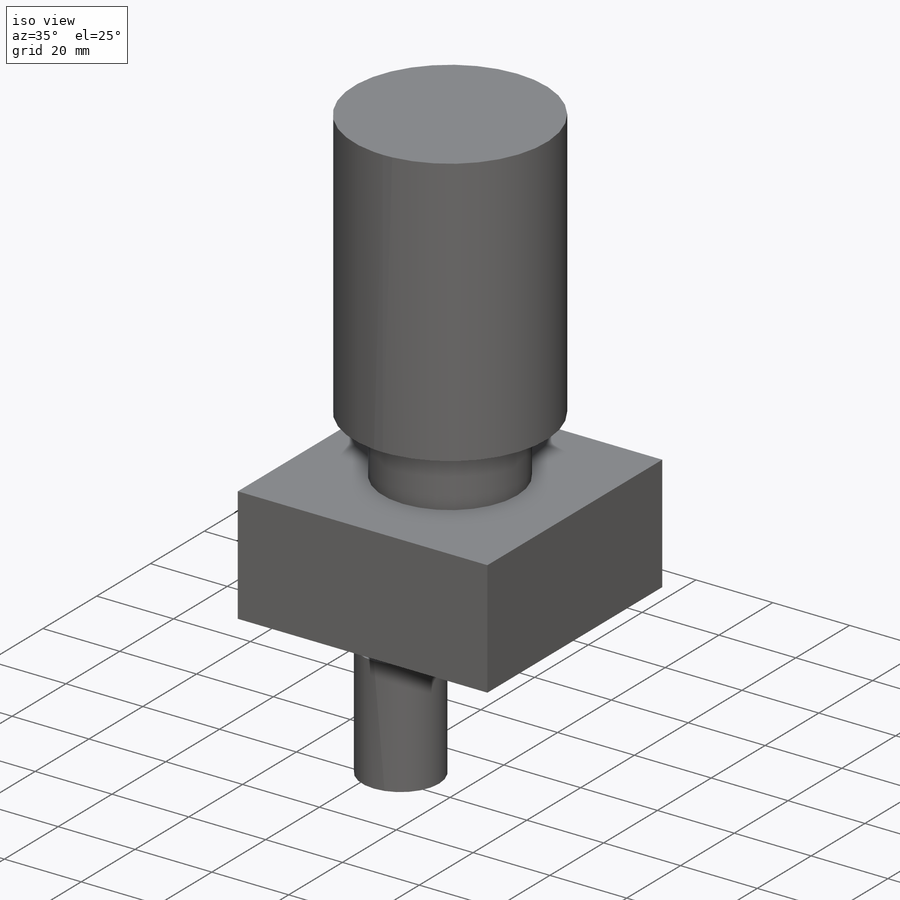
[diagram: iso view]
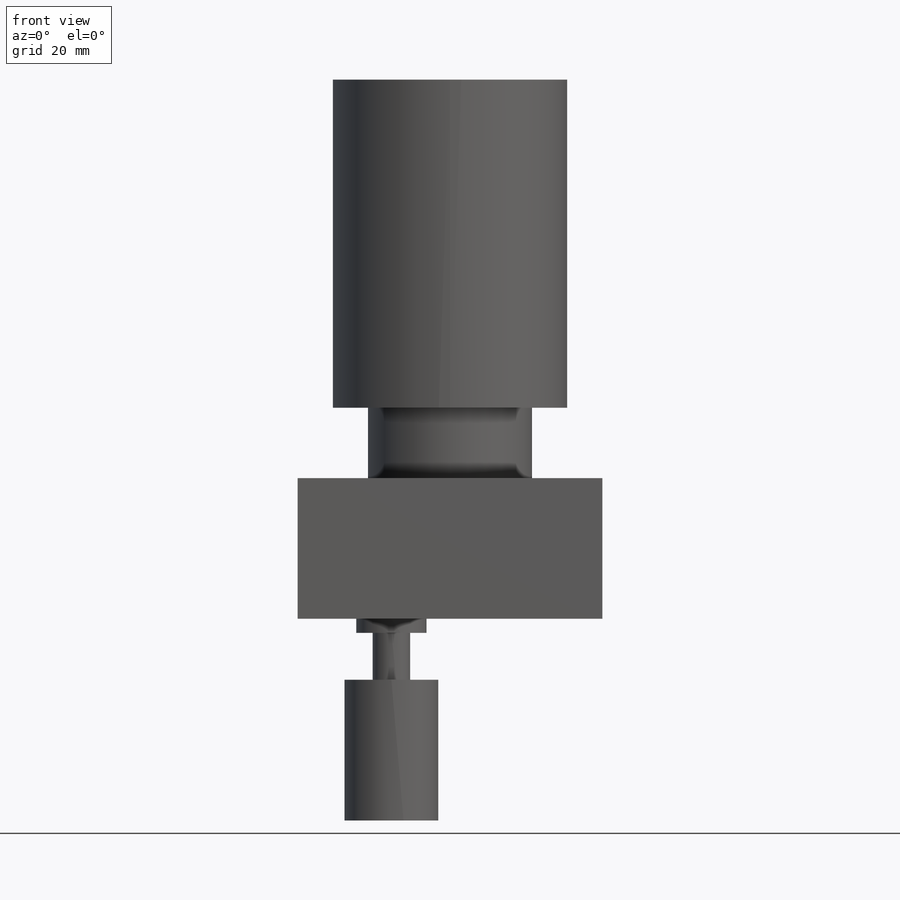
[diagram: front view]
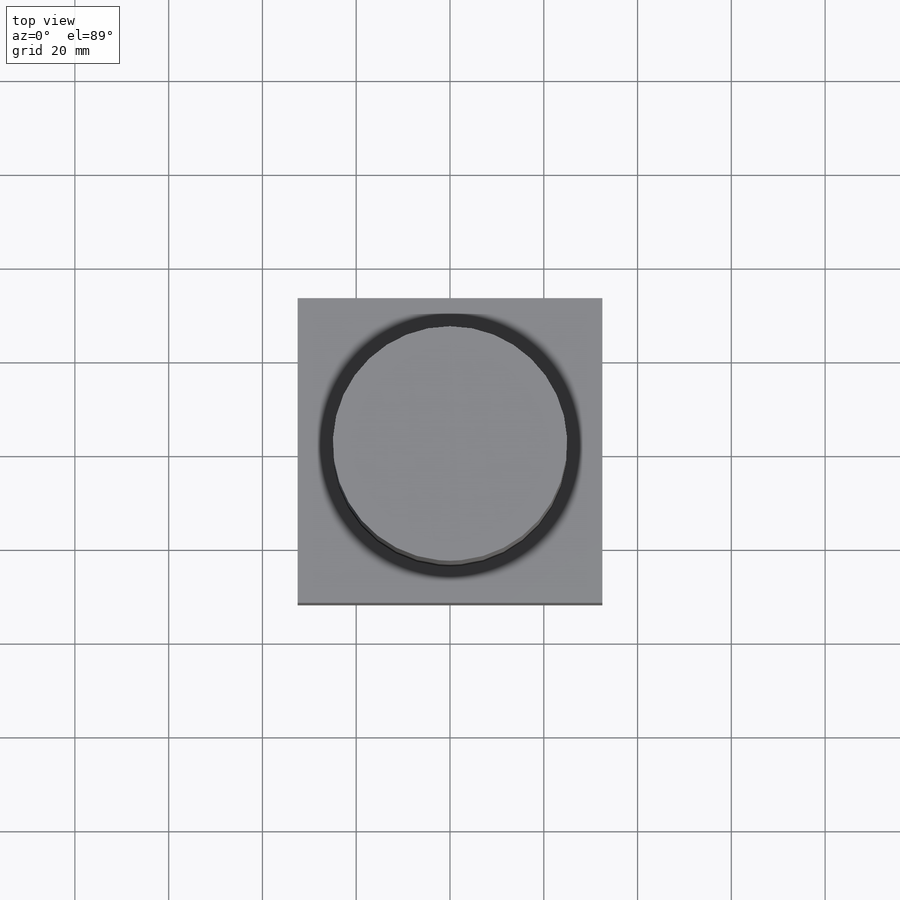
[diagram: top view]
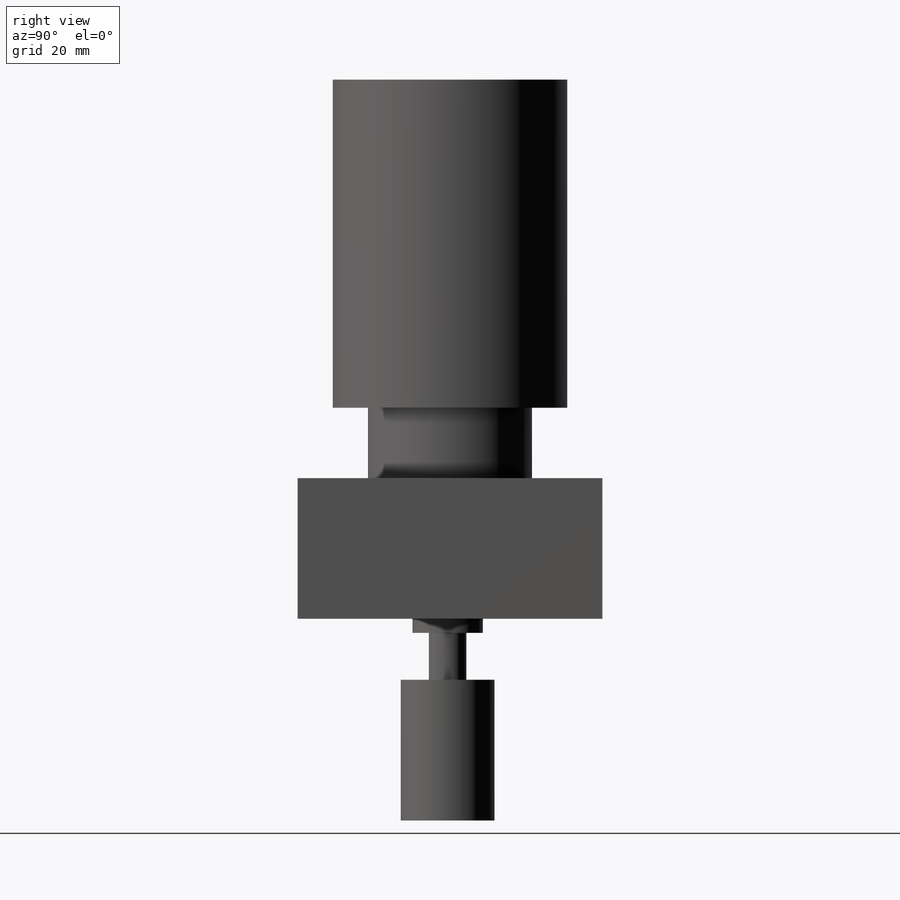
[diagram: right view]
SOLIDWORKS PART (.sldprt)
format: sldprt  version: not decoded by parser v0  size: 195,072 bytes
history: native  units: mm
features: sketch x7, extrude x6, material x1, cut_extrude x1 (+13 scaffold rows collapsed)
feature tree (28):
  scaffold x13  (default folders/planes/origin — collapsed)
  material  "Material <not specified>"
  sketch  "Sketch1"  dims[D1=65.0mm]
  extrude  "Boss-Extrude1"  Depth=30mm
  sketch  "Sketch3"  dims[D1=35.0mm]
  extrude  "Boss-Extrude2"  Depth=15mm
  sketch  "Sketch4"  dims[D1=50.0mm]
  extrude  "Boss-Extrude3"  Depth=70mm
  sketch  "Sketch5"  dims[c1.D3=7.5mm c1.D4=3.75mm c2.D3=3.75mm c2.D1=33.0mm c2.D2=~34.786452mm c3.D2=90.0deg c4.D2=20.0mm]
  extrude  "Boss-Extrude4"  Depth=3mm
  sketch  "Sketch6"  dims[D1=7.5mm]
  extrude  "Boss-Extrude5"  Depth=10mm
  sketch  "Sketch7"  dims[D1=~10.021703mm]
  extrude  "Boss-Extrude6"  Depth=30mm
  sketch  "Sketch8"
  cut_extrude  "Cut-Extrude1"  Depth=22.38mm
decode coverage: 13 of 14 modeling features carry decoded parameters
note: ~ marks probable driven/reference dimensions
note: suppression state not decoded; provenance and decode notes live in map.json
